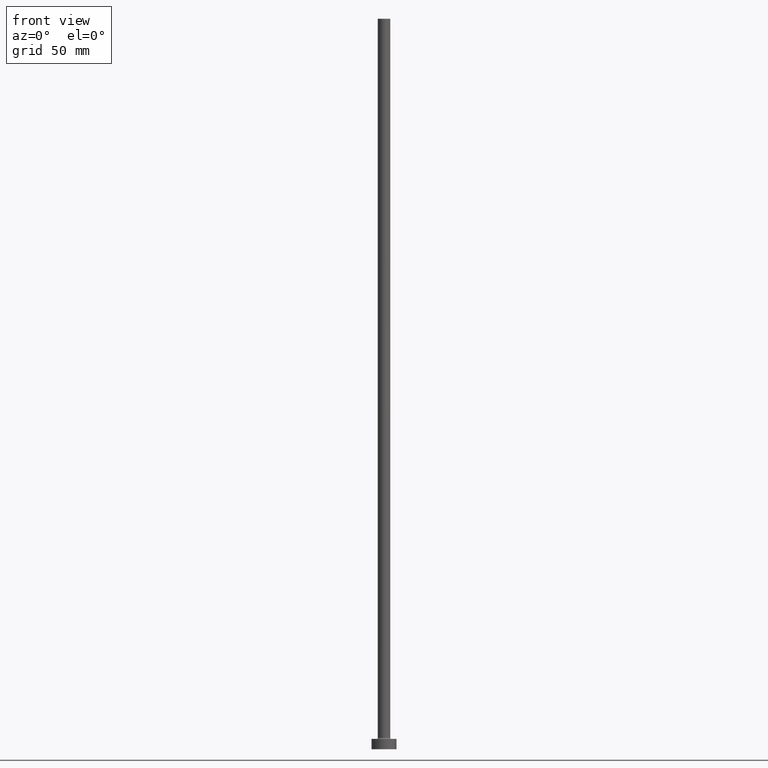
[diagram: clean part render]
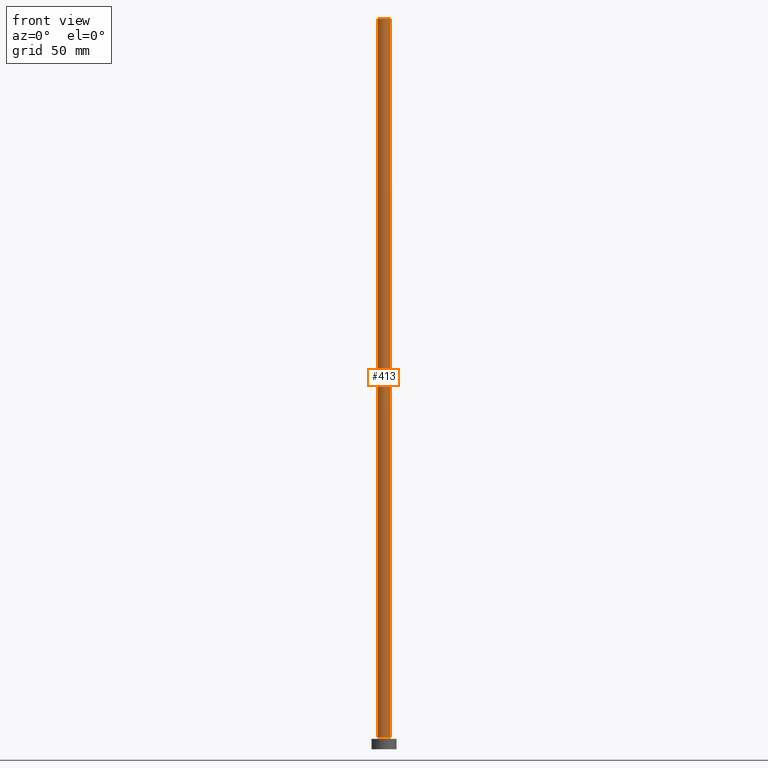
[diagram: same view with one face highlighted and labeled with its STEP entity id]
A machine part, front view. The second image highlights one B-rep face of the part: STEP entity #413.
In plain terms, the highlighted cylindrical surface (edge-blend (fillet) strip) has radius 3 mm, axis along (-0, -0, -1).
Its self-contained STEP definition (entity closure, byte-faithful):
#31 = DIRECTION ( 'NONE',  ( -0.000000000000000000, -0.000000000000000000, -1.000000000000000000 ) ) ;
#36 = CARTESIAN_POINT ( 'NONE',  ( 0.000000000000000000, 0.000000000000000000, 350.0000000000000000 ) ) ;
#38 = VERTEX_POINT ( 'NONE', #222 ) ;
#60 = LINE ( 'NONE', #433, #64 ) ;
#64 = VECTOR ( 'NONE', #403, 1000.000000000000000 ) ;
#67 = DIRECTION ( 'NONE',  ( -0.000000000000000000, -0.000000000000000000, -1.000000000000000000 ) ) ;
#82 = ORIENTED_EDGE ( 'NONE', *, *, #104, .T. ) ;
#86 = CYLINDRICAL_SURFACE ( 'NONE', #98, 3.000000000000000444 ) ;
#98 = AXIS2_PLACEMENT_3D ( 'NONE', #36, #31, #318 ) ;
#103 = DIRECTION ( 'NONE',  ( 0.000000000000000000, 0.000000000000000000, 1.000000000000000000 ) ) ;
#104 = EDGE_CURVE ( 'NONE', #38, #261, #153, .T. ) ;
#113 = DIRECTION ( 'NONE',  ( 1.000000000000000000, 0.000000000000000000, 0.000000000000000000 ) ) ;
#132 = DIRECTION ( 'NONE',  ( 0.000000000000000000, 0.000000000000000000, 1.000000000000000000 ) ) ;
#153 = CIRCLE ( 'NONE', #265, 3.000000000000000444 ) ;
#168 = LINE ( 'NONE', #314, #226 ) ;
#179 = ORIENTED_EDGE ( 'NONE', *, *, #341, .F. ) ;
#186 = EDGE_LOOP ( 'NONE', ( #179, #460, #407, #82 ) ) ;
#222 = CARTESIAN_POINT ( 'NONE',  ( -3.000000000000000444, 0.000000000000000000, 5.500000000000005329 ) ) ;
#226 = VECTOR ( 'NONE', #67, 1000.000000000000000 ) ;
#240 = CARTESIAN_POINT ( 'NONE',  ( 3.000000000000000444, 3.673940397442060361E-16, 350.0000000000000000 ) ) ;
#241 = CIRCLE ( 'NONE', #416, 3.000000000000000444 ) ;
#261 = VERTEX_POINT ( 'NONE', #384 ) ;
#265 = AXIS2_PLACEMENT_3D ( 'NONE', #324, #103, #113 ) ;
#275 = CARTESIAN_POINT ( 'NONE',  ( -3.000000000000000444, 0.000000000000000000, 350.0000000000000000 ) ) ;
#278 = CARTESIAN_POINT ( 'NONE',  ( 0.000000000000000000, 0.000000000000000000, 350.0000000000000000 ) ) ;
#314 = CARTESIAN_POINT ( 'NONE',  ( -3.000000000000000444, 0.000000000000000000, 350.0000000000000000 ) ) ;
#318 = DIRECTION ( 'NONE',  ( -1.000000000000000000, 0.000000000000000000, 0.000000000000000000 ) ) ;
#320 = EDGE_CURVE ( 'NONE', #325, #445, #241, .T. ) ;
#324 = CARTESIAN_POINT ( 'NONE',  ( 0.000000000000000000, 0.000000000000000000, 5.500000000000005329 ) ) ;
#325 = VERTEX_POINT ( 'NONE', #275 ) ;
#326 = EDGE_CURVE ( 'NONE', #325, #38, #168, .T. ) ;
#341 = EDGE_CURVE ( 'NONE', #445, #261, #60, .T. ) ;
#351 = FACE_OUTER_BOUND ( 'NONE', #186, .T. ) ;
#384 = CARTESIAN_POINT ( 'NONE',  ( 3.000000000000000444, 3.673940397442060361E-16, 5.500000000000005329 ) ) ;
#403 = DIRECTION ( 'NONE',  ( -0.000000000000000000, -0.000000000000000000, -1.000000000000000000 ) ) ;
#407 = ORIENTED_EDGE ( 'NONE', *, *, #326, .T. ) ;
#411 = DIRECTION ( 'NONE',  ( 1.000000000000000000, 0.000000000000000000, 0.000000000000000000 ) ) ;
#413 = ADVANCED_FACE ( 'NONE', ( #351 ), #86, .T. ) ;
#416 = AXIS2_PLACEMENT_3D ( 'NONE', #278, #132, #411 ) ;
#433 = CARTESIAN_POINT ( 'NONE',  ( 3.000000000000000444, 3.673940397442060361E-16, 350.0000000000000000 ) ) ;
#445 = VERTEX_POINT ( 'NONE', #240 ) ;
#460 = ORIENTED_EDGE ( 'NONE', *, *, #320, .F. ) ;